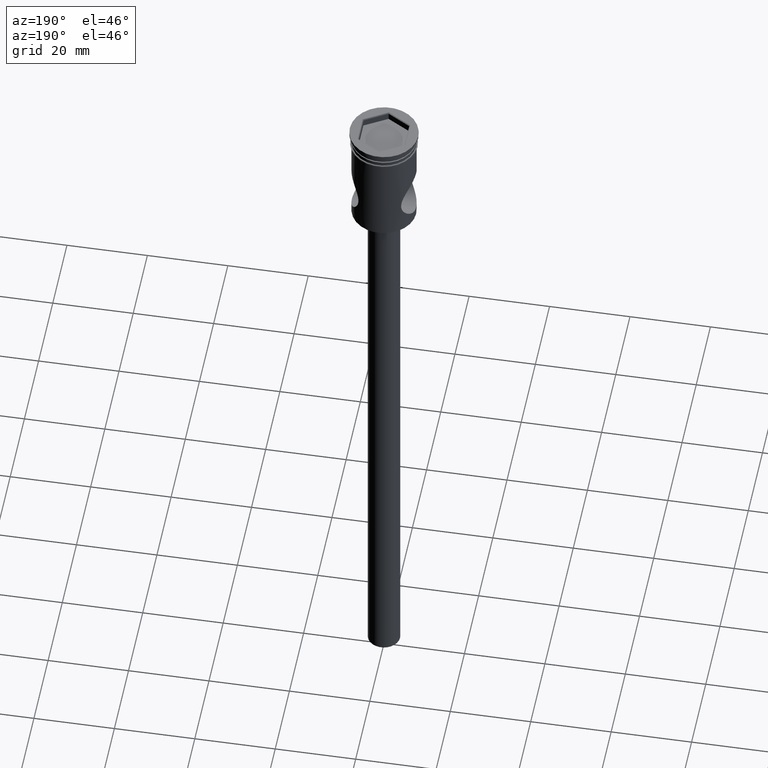
[diagram: clean part render]
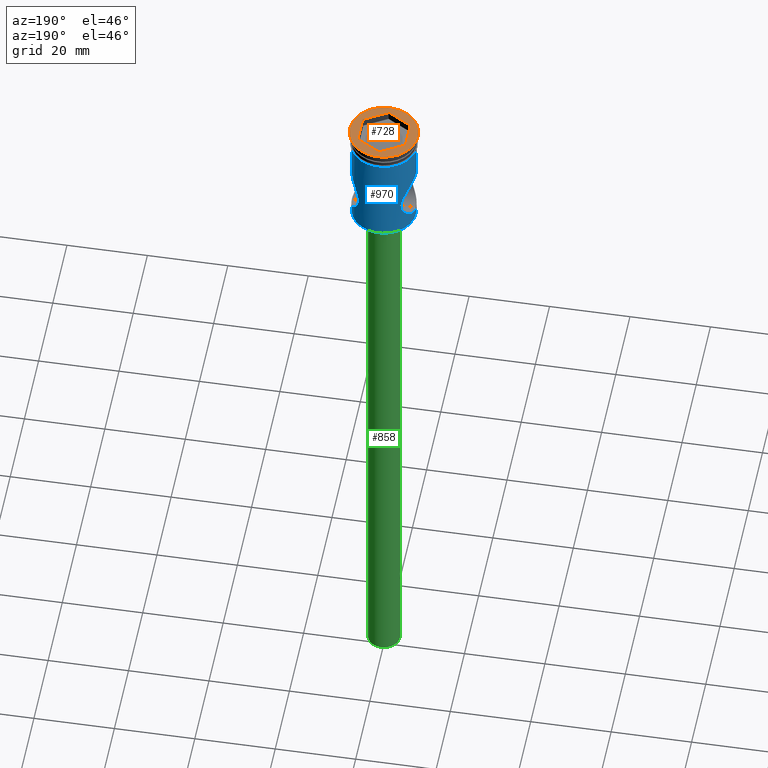
[diagram: same view with three faces highlighted in distinct colors, each labeled with its STEP entity id]
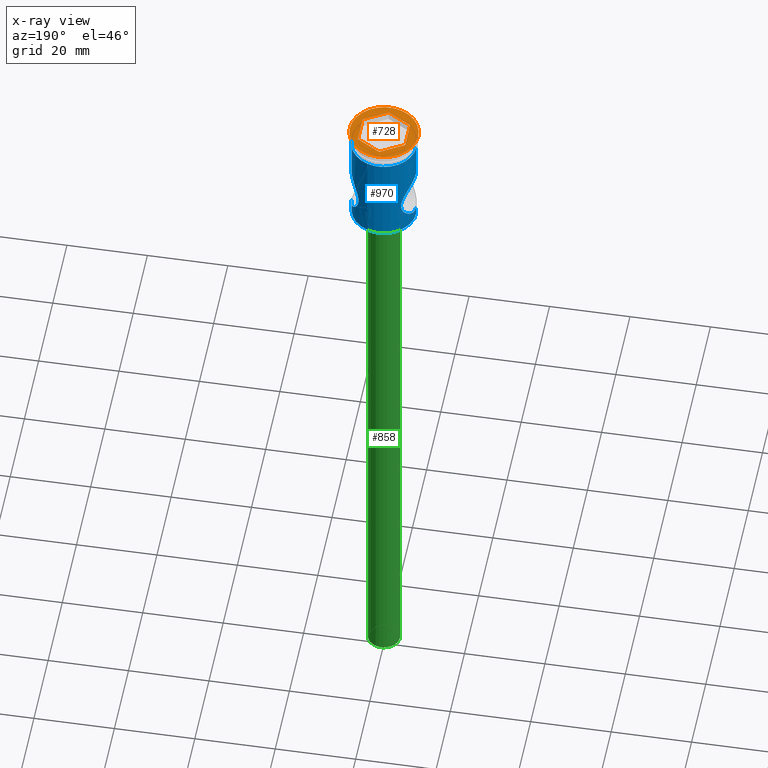
[diagram: x-ray of the same camera — body ghosted, the three highlighted faces saturated]
A machine part, auxiliary view with three faces highlighted in distinct colors.
The next image is the same camera in x-ray (body ghosted, the three faces saturated) — at least one of them is partly hidden behind the body in this view.
Their STEP definitions:

[orange] entity #728 — the highlighted planar face has unit normal (0, -0, 1).
#55 = EDGE_LOOP ( 'NONE', ( #536, #999 ) ) ;
#64 = CARTESIAN_POINT ( 'NONE',  ( 0.000000000000000000, 0.000000000000000000, 0.000000000000000000 ) ) ;
#91 = VERTEX_POINT ( 'NONE', #247 ) ;
#98 = CARTESIAN_POINT ( 'NONE',  ( -5.899999999999997691, -3.406366588218790348, 0.000000000000000000 ) ) ;
#133 = ORIENTED_EDGE ( 'NONE', *, *, #961, .T. ) ;
#170 = AXIS2_PLACEMENT_3D ( 'NONE', #1034, #299, #1253 ) ;
#183 = ORIENTED_EDGE ( 'NONE', *, *, #886, .T. ) ;
#195 = CARTESIAN_POINT ( 'NONE',  ( -0.09999999999999933942, 6.754998149518617545, 0.000000000000000000 ) ) ;
#202 = EDGE_LOOP ( 'NONE', ( #1301, #778, #183, #133, #280, #1160 ) ) ;
#208 = LINE ( 'NONE', #815, #1213 ) ;
#225 = CARTESIAN_POINT ( 'NONE',  ( -5.799999999999998934, -3.464101615137751722, 0.000000000000000000 ) ) ;
#247 = CARTESIAN_POINT ( 'NONE',  ( 5.899999999999996803, -3.406366588218789460, 0.000000000000000000 ) ) ;
#248 = DIRECTION ( 'NONE',  ( 0.8660254037844388186, -0.4999999999999997780, 0.000000000000000000 ) ) ;
#278 = CARTESIAN_POINT ( 'NONE',  ( -8.500000000000000000, 1.040949779275250140E-15, 0.000000000000000000 ) ) ;
#280 = ORIENTED_EDGE ( 'NONE', *, *, #907, .T. ) ;
#299 = DIRECTION ( 'NONE',  ( -0.000000000000000000, -0.000000000000000000, 1.000000000000000000 ) ) ;
#308 = EDGE_CURVE ( 'NONE', #1008, #1503, #1075, .T. ) ;
#314 = VERTEX_POINT ( 'NONE', #781 ) ;
#328 = DIRECTION ( 'NONE',  ( 0.8660254037844385966, 0.4999999999999999445, 0.000000000000000000 ) ) ;
#372 = CARTESIAN_POINT ( 'NONE',  ( 5.799999999999998934, 3.464101615137752610, 0.000000000000000000 ) ) ;
#490 = LINE ( 'NONE', #372, #1343 ) ;
#527 = DIRECTION ( 'NONE',  ( 0.000000000000000000, -0.000000000000000000, 1.000000000000000000 ) ) ;
#529 = VECTOR ( 'NONE', #930, 1000.000000000000000 ) ;
#536 = ORIENTED_EDGE ( 'NONE', *, *, #755, .T. ) ;
#559 = CARTESIAN_POINT ( 'NONE',  ( 0.000000000000000000, 0.000000000000000000, 0.000000000000000000 ) ) ;
#583 = VERTEX_POINT ( 'NONE', #935 ) ;
#607 = VECTOR ( 'NONE', #1373, 1000.000000000000000 ) ;
#627 = AXIS2_PLACEMENT_3D ( 'NONE', #64, #527, #796 ) ;
#657 = DIRECTION ( 'NONE',  ( -0.000000000000000000, -0.000000000000000000, 1.000000000000000000 ) ) ;
#705 = DIRECTION ( 'NONE',  ( -0.8660254037844385966, 0.5000000000000001110, 0.000000000000000000 ) ) ;
#728 = ADVANCED_FACE ( 'NONE', ( #1236, #1352 ), #1447, .T. ) ;
#755 = EDGE_CURVE ( 'NONE', #1503, #1008, #1047, .T. ) ;
#778 = ORIENTED_EDGE ( 'NONE', *, *, #1376, .T. ) ;
#781 = CARTESIAN_POINT ( 'NONE',  ( 5.899999999999998579, 3.406366588218789904, 0.000000000000000000 ) ) ;
#796 = DIRECTION ( 'NONE',  ( 1.000000000000000000, 0.000000000000000000, 0.000000000000000000 ) ) ;
#815 = CARTESIAN_POINT ( 'NONE',  ( -5.899999999999996803, 3.290896534380865823, 0.000000000000000000 ) ) ;
#822 = LINE ( 'NONE', #1272, #529 ) ;
#851 = CARTESIAN_POINT ( 'NONE',  ( -5.899999999999996803, 3.406366588218790348, 0.000000000000000000 ) ) ;
#874 = AXIS2_PLACEMENT_3D ( 'NONE', #559, #657, #1032 ) ;
#886 = EDGE_CURVE ( 'NONE', #990, #583, #1256, .T. ) ;
#907 = EDGE_CURVE ( 'NONE', #314, #91, #822, .T. ) ;
#930 = DIRECTION ( 'NONE',  ( -3.953459470360945130E-16, -1.000000000000000000, 0.000000000000000000 ) ) ;
#935 = CARTESIAN_POINT ( 'NONE',  ( -5.954239560892097332E-16, 6.812733176437579807, 0.000000000000000000 ) ) ;
#961 = EDGE_CURVE ( 'NONE', #583, #314, #490, .T. ) ;
#990 = VERTEX_POINT ( 'NONE', #851 ) ;
#999 = ORIENTED_EDGE ( 'NONE', *, *, #308, .T. ) ;
#1008 = VERTEX_POINT ( 'NONE', #278 ) ;
#1032 = DIRECTION ( 'NONE',  ( 1.000000000000000000, 0.000000000000000000, 0.000000000000000000 ) ) ;
#1034 = CARTESIAN_POINT ( 'NONE',  ( 0.000000000000000000, 0.000000000000000000, 0.000000000000000000 ) ) ;
#1047 = CIRCLE ( 'NONE', #874, 8.500000000000000000 ) ;
#1050 = VECTOR ( 'NONE', #705, 1000.000000000000114 ) ;
#1057 = LINE ( 'NONE', #1167, #607 ) ;
#1075 = CIRCLE ( 'NONE', #170, 8.500000000000000000 ) ;
#1145 = VECTOR ( 'NONE', #328, 1000.000000000000114 ) ;
#1160 = ORIENTED_EDGE ( 'NONE', *, *, #1238, .T. ) ;
#1167 = CARTESIAN_POINT ( 'NONE',  ( 0.09999999999999691080, -6.754998149518617545, 0.000000000000000000 ) ) ;
#1212 = DIRECTION ( 'NONE',  ( 1.317819823453649034E-16, 1.000000000000000000, 0.000000000000000000 ) ) ;
#1213 = VECTOR ( 'NONE', #1212, 1000.000000000000000 ) ;
#1215 = VERTEX_POINT ( 'NONE', #98 ) ;
#1236 = FACE_BOUND ( 'NONE', #202, .T. ) ;
#1238 = EDGE_CURVE ( 'NONE', #91, #1399, #1057, .T. ) ;
#1242 = CARTESIAN_POINT ( 'NONE',  ( -2.007024465603783099E-15, -6.812733176437579807, 0.000000000000000000 ) ) ;
#1253 = DIRECTION ( 'NONE',  ( 1.000000000000000000, 0.000000000000000000, 0.000000000000000000 ) ) ;
#1256 = LINE ( 'NONE', #195, #1145 ) ;
#1272 = CARTESIAN_POINT ( 'NONE',  ( 5.899999999999996803, -3.290896534380868488, 0.000000000000000000 ) ) ;
#1301 = ORIENTED_EDGE ( 'NONE', *, *, #1365, .T. ) ;
#1343 = VECTOR ( 'NONE', #248, 1000.000000000000114 ) ;
#1352 = FACE_OUTER_BOUND ( 'NONE', #55, .T. ) ;
#1365 = EDGE_CURVE ( 'NONE', #1399, #1215, #1493, .T. ) ;
#1373 = DIRECTION ( 'NONE',  ( -0.8660254037844387076, -0.4999999999999998890, 0.000000000000000000 ) ) ;
#1376 = EDGE_CURVE ( 'NONE', #1215, #990, #208, .T. ) ;
#1399 = VERTEX_POINT ( 'NONE', #1242 ) ;
#1404 = CARTESIAN_POINT ( 'NONE',  ( 8.500000000000000000, 0.000000000000000000, 0.000000000000000000 ) ) ;
#1447 = PLANE ( 'NONE',  #627 ) ;
#1493 = LINE ( 'NONE', #225, #1050 ) ;
#1503 = VERTEX_POINT ( 'NONE', #1404 ) ;

[blue] entity #970 — the highlighted cylindrical surface (edge-blend (fillet) strip) has radius 8 mm, axis along (-0, -0, 1).
#6 = CYLINDRICAL_SURFACE ( 'NONE', #998, 7.999999999999996447 ) ;
#10 = CARTESIAN_POINT ( 'NONE',  ( 0.000000000000000000, 0.000000000000000000, -27.30000000000000426 ) ) ;
#18 = DIRECTION ( 'NONE',  ( -0.000000000000000000, -0.000000000000000000, 1.000000000000000000 ) ) ;
#42 = B_SPLINE_CURVE_WITH_KNOTS ( 'NONE', 3,
 ( #57, #992, #883, #1137, #653, #1028, #1010, #908, #168, #1353, #1453, #643, #1334, #289, #1228, #1122, #50, #538, #417, #774, #85, #340, #475, #585, #1384, #825, #201, #1044, #1285, #946, #258, #694, #568, #1054, #1476, #560, #1482, #1502, #1162, #1033, #920, #458, #1275, #333 ),
 .UNSPECIFIED., .F., .F.,
 ( 4, 2, 2, 2, 2, 2, 2, 2, 2, 2, 2, 2, 2, 2, 2, 2, 2, 2, 2, 2, 2, 4 ),
 ( 0.000000000000000000, 0.001228223836357238098, 0.002456447672714476196, 0.003070559590893096654, 0.003684671509071716679, 0.004912895345428957596, 0.006141119181786197645, 0.007369343018143437694, 0.007983454936322062490, 0.008597566854500688152, 0.009825790690857941212, 0.01043990260903657034, 0.01105401452721520121, 0.01166812644539383034, 0.01228223836357246121, 0.01351046219992971080, 0.01473868603628695692, 0.01596690987264420825, 0.01719513370900145610, 0.01780924562718008350, 0.01842335754535870743, 0.01965158138171595528 ),
 .UNSPECIFIED. ) ;
#50 = CARTESIAN_POINT ( 'NONE',  ( 5.648998666191807239, 5.665331633315698667, -20.98569890523691583 ) ) ;
#57 = CARTESIAN_POINT ( 'NONE',  ( 7.999999999999996447, 0.000000000000000000, -25.00000000000000000 ) ) ;
#59 = CARTESIAN_POINT ( 'NONE',  ( -6.599412474671010109, 4.532668071879429661, -15.05083651367930742 ) ) ;
#69 = CARTESIAN_POINT ( 'NONE',  ( -5.937193840094636244, 5.363245192895813140, -21.69666719771004892 ) ) ;
#74 = EDGE_CURVE ( 'NONE', #502, #1332, #1169, .T. ) ;
#85 = CARTESIAN_POINT ( 'NONE',  ( 5.291508588819593406, 5.999994737873667106, -19.40979141361455262 ) ) ;
#87 = CARTESIAN_POINT ( 'NONE',  ( 7.999999999999996447, 0.000000000000000000, -27.30000000000000426 ) ) ;
#108 = CARTESIAN_POINT ( 'NONE',  ( -7.999999999999996447, 9.797174393178821713E-16, 0.000000000000000000 ) ) ;
#113 = CARTESIAN_POINT ( 'NONE',  ( -7.999999999999996447, 9.797174356432676922E-16, -13.00000000000000533 ) ) ;
#135 = CARTESIAN_POINT ( 'NONE',  ( 7.999999999999996447, 3.674711311745778243E-24, -13.00000000000000533 ) ) ;
#162 = CARTESIAN_POINT ( 'NONE',  ( -7.392840448243055640, 3.077268624920922235, -13.83477139314359405 ) ) ;
#168 = CARTESIAN_POINT ( 'NONE',  ( 7.318622431870950074, 3.235523761949524069, -24.05653912422262408 ) ) ;
#171 = CARTESIAN_POINT ( 'NONE',  ( -5.474655730134190712, 5.833676180865436933, -17.58271699258815346 ) ) ;
#176 = ORIENTED_EDGE ( 'NONE', *, *, #466, .F. ) ;
#181 = ORIENTED_EDGE ( 'NONE', *, *, #1229, .F. ) ;
#187 = CARTESIAN_POINT ( 'NONE',  ( -5.340955530264040796, 5.957261304845339112, -19.82204812401646876 ) ) ;
#193 = CARTESIAN_POINT ( 'NONE',  ( -6.426120009460147386, 4.772495035090829951, -15.34422494722665498 ) ) ;
#201 = CARTESIAN_POINT ( 'NONE',  ( 5.527877811876816594, 5.783575200193208588, -17.39087967744914920 ) ) ;
#212 = CARTESIAN_POINT ( 'NONE',  ( -7.999999999999996447, 0.000000000000000000, -25.00000000000000000 ) ) ;
#244 = VERTEX_POINT ( 'NONE', #135 ) ;
#258 = CARTESIAN_POINT ( 'NONE',  ( 6.095265202635740565, 5.188384097884398471, -15.96330462474424650 ) ) ;
#289 = CARTESIAN_POINT ( 'NONE',  ( 6.094205644570493519, 5.189600670481776312, -22.03454661334871290 ) ) ;
#291 = CARTESIAN_POINT ( 'NONE',  ( -6.932348065000020654, 4.004981294134720926, -14.51657531287133551 ) ) ;
#301 = CARTESIAN_POINT ( 'NONE',  ( -5.717670742267800144, 5.596336919971244939, -16.82796284348983917 ) ) ;
#325 = LINE ( 'NONE', #800, #775 ) ;
#326 = DIRECTION ( 'NONE',  ( -0.000000000000000000, -0.000000000000000000, 1.000000000000000000 ) ) ;
#333 = CARTESIAN_POINT ( 'NONE',  ( 7.999999999999996447, 3.674711311745778243E-24, -13.00000000000000533 ) ) ;
#337 = CARTESIAN_POINT ( 'NONE',  ( 7.999999999999996447, 0.000000000000000000, 0.000000000000000000 ) ) ;
#340 = CARTESIAN_POINT ( 'NONE',  ( 5.291499639625487639, 6.000002630321015218, -18.79521987294451435 ) ) ;
#341 = VERTEX_POINT ( 'NONE', #87 ) ;
#382 = CIRCLE ( 'NONE', #1233, 7.999999999999996447 ) ;
#392 = ORIENTED_EDGE ( 'NONE', *, *, #74, .T. ) ;
#409 = ORIENTED_EDGE ( 'NONE', *, *, #1356, .F. ) ;
#411 = CARTESIAN_POINT ( 'NONE',  ( -7.696444758544893183, 2.191140728972409857, -13.41088448561661650 ) ) ;
#417 = CARTESIAN_POINT ( 'NONE',  ( 5.474514516413027998, 5.833807645266261943, -20.41669993575522923 ) ) ;
#419 = CARTESIAN_POINT ( 'NONE',  ( -7.875112291323477898, 1.422312626392037371, -13.16749109191733957 ) ) ;
#438 = CARTESIAN_POINT ( 'NONE',  ( -5.291471813663452650, 6.000027170513403618, -18.79430872448704548 ) ) ;
#443 = CARTESIAN_POINT ( 'NONE',  ( -7.748015674478848425, 2.001785621332211385, -13.34018995724741607 ) ) ;
#458 = CARTESIAN_POINT ( 'NONE',  ( 7.968510204580123713, 0.8173127755210328749, -13.04179007278580293 ) ) ;
#466 = EDGE_CURVE ( 'NONE', #341, #921, #468, .T. ) ;
#468 = LINE ( 'NONE', #1287, #1191 ) ;
#475 = CARTESIAN_POINT ( 'NONE',  ( 5.303431297491207452, 5.989541423528398134, -18.59082079987659952 ) ) ;
#502 = VERTEX_POINT ( 'NONE', #113 ) ;
#538 = CARTESIAN_POINT ( 'NONE',  ( 5.527830583457348013, 5.783619756404971390, -20.60895157510370268 ) ) ;
#555 = CARTESIAN_POINT ( 'NONE',  ( -6.096832542624039064, 5.181052271612227145, -22.03201423696314265 ) ) ;
#560 = CARTESIAN_POINT ( 'NONE',  ( 7.392183792285975663, 3.078563709593460818, -13.83574790663121590 ) ) ;
#564 = CARTESIAN_POINT ( 'NONE',  ( -6.598787025335902889, 4.533655066149032464, -22.94815787054485412 ) ) ;
#568 = CARTESIAN_POINT ( 'NONE',  ( 6.602014270987715427, 4.528930003495660550, -15.04648686704185856 ) ) ;
#585 = CARTESIAN_POINT ( 'NONE',  ( 5.350380422783078238, 5.947639811124362907, -18.18292303966837764 ) ) ;
#589 = CARTESIAN_POINT ( 'NONE',  ( -7.746242821178788596, 2.008647717025523693, -24.65738428818450245 ) ) ;
#603 = CARTESIAN_POINT ( 'NONE',  ( -6.932510933914958429, 3.995992554649490547, -23.47975228357175581 ) ) ;
#643 = CARTESIAN_POINT ( 'NONE',  ( 6.600129246405443517, 4.531693863514761667, -22.95038707538193634 ) ) ;
#653 = CARTESIAN_POINT ( 'NONE',  ( 7.753317466694376492, 2.007594612796118838, -24.66794618566808239 ) ) ;
#659 = CARTESIAN_POINT ( 'NONE',  ( -8.000000000000005329, 0.2050786897151790633, -13.00000000000000355 ) ) ;
#666 = CARTESIAN_POINT ( 'NONE',  ( -5.519437917285256567, 5.792285672141820108, -20.61683396324643169 ) ) ;
#674 = CARTESIAN_POINT ( 'NONE',  ( -5.528728542356219577, 5.782767647903219732, -17.38791116192859931 ) ) ;
#691 = CARTESIAN_POINT ( 'NONE',  ( 7.999999999999996447, 0.000000000000000000, -25.00000000000000000 ) ) ;
#694 = CARTESIAN_POINT ( 'NONE',  ( 6.428305707969257377, 4.769535948342530141, -15.34044057477574263 ) ) ;
#716 = CARTESIAN_POINT ( 'NONE',  ( -8.000000000000000000, 0.2076584939606447855, -25.00000000000001066 ) ) ;
#719 = EDGE_LOOP ( 'NONE', ( #1507, #927, #1172, #392, #181, #972, #409, #176 ) ) ;
#744 = DIRECTION ( 'NONE',  ( 1.000000000000000000, 0.000000000000000000, 0.000000000000000000 ) ) ;
#767 = CARTESIAN_POINT ( 'NONE',  ( -7.960178332295269499, 0.8233858112076458680, -13.05318252701360215 ) ) ;
#774 = CARTESIAN_POINT ( 'NONE',  ( 5.341952933818355120, 5.956343020881682548, -19.82666753736794618 ) ) ;
#775 = VECTOR ( 'NONE', #1035, 1000.000000000000000 ) ;
#783 = CARTESIAN_POINT ( 'NONE',  ( -7.094299755750172132, 3.714105956844027556, -14.27193636968089585 ) ) ;
#790 = CARTESIAN_POINT ( 'NONE',  ( -5.859839614964069909, 5.447306643968808260, -21.52271597277527704 ) ) ;
#800 = CARTESIAN_POINT ( 'NONE',  ( -7.999999999999996447, 9.797174393178821713E-16, 0.000000000000000000 ) ) ;
#811 = CARTESIAN_POINT ( 'NONE',  ( -7.694334963991131815, 2.198537974230715175, -24.58621182590502485 ) ) ;
#825 = CARTESIAN_POINT ( 'NONE',  ( 5.474412988877314312, 5.833905236971784980, -17.58356884929881048 ) ) ;
#861 = VERTEX_POINT ( 'NONE', #1364 ) ;
#883 = CARTESIAN_POINT ( 'NONE',  ( 7.967750386662298290, 0.8225813075346128933, -24.95718867133071939 ) ) ;
#903 = CARTESIAN_POINT ( 'NONE',  ( -7.837238599853709964, 1.617585761159322510, -13.21864966473142644 ) ) ;
#908 = CARTESIAN_POINT ( 'NONE',  ( 7.390068150002869096, 3.069273339745732798, -24.15922233971244637 ) ) ;
#911 = CARTESIAN_POINT ( 'NONE',  ( -6.092548161367386861, 5.191587824295140763, -15.96869401757640716 ) ) ;
#920 = CARTESIAN_POINT ( 'NONE',  ( 7.875627092851996913, 1.419784017982118174, -13.16679506876979033 ) ) ;
#921 = VERTEX_POINT ( 'NONE', #691 ) ;
#925 = DIRECTION ( 'NONE',  ( 1.000000000000000000, 0.000000000000000000, 0.000000000000000000 ) ) ;
#926 = VECTOR ( 'NONE', #1486, 1000.000000000000000 ) ;
#927 = ORIENTED_EDGE ( 'NONE', *, *, #1470, .T. ) ;
#937 = CARTESIAN_POINT ( 'NONE',  ( -7.873944427309549354, 1.428810887794780049, -24.83093286763472918 ) ) ;
#942 = CARTESIAN_POINT ( 'NONE',  ( -7.835858405065169840, 1.624274161447295306, -24.77948060674688691 ) ) ;
#946 = CARTESIAN_POINT ( 'NONE',  ( 5.934194063793421847, 5.369288296893337531, -16.29430799600839208 ) ) ;
#952 = CARTESIAN_POINT ( 'NONE',  ( -7.092607887154919410, 3.704399776580871606, -23.72372303530257298 ) ) ;
#968 = FACE_OUTER_BOUND ( 'NONE', #719, .T. ) ;
#970 = ADVANCED_FACE ( 'NONE', ( #968 ), #6, .T. ) ;
#972 = ORIENTED_EDGE ( 'NONE', *, *, #1219, .F. ) ;
#980 = EDGE_CURVE ( 'NONE', #341, #1483, #382, .T. ) ;
#992 = CARTESIAN_POINT ( 'NONE',  ( 7.999999999999998224, 0.4161879994587696641, -25.00000000000000711 ) ) ;
#998 = AXIS2_PLACEMENT_3D ( 'NONE', #1203, #1440, #744 ) ;
#1010 = CARTESIAN_POINT ( 'NONE',  ( 7.522790365168889437, 2.727851025529601348, -24.34760159016909142 ) ) ;
#1020 = CARTESIAN_POINT ( 'NONE',  ( -5.932300773519818549, 5.371293148560216224, -16.29886334358921118 ) ) ;
#1021 = B_SPLINE_CURVE_WITH_KNOTS ( 'NONE', 3,
 ( #1336, #659, #1341, #767, #1224, #419, #903, #443, #411, #1132, #162, #783, #291, #59, #193, #911, #1020, #301, #1349, #674, #171, #1124, #1462, #1243, #438, #1148, #187, #666, #1140, #790, #69, #555, #1473, #1248, #564, #1074, #603, #952, #1270, #1362, #1388, #811, #589, #942, #937, #1397, #1513, #1263, #716, #212 ),
 .UNSPECIFIED., .F., .F.,
 ( 4, 2, 2, 2, 2, 2, 2, 2, 2, 2, 2, 2, 2, 2, 2, 2, 2, 2, 2, 2, 2, 2, 2, 2, 4 ),
 ( 0.01965158138171595875, 0.02026440806685870719, 0.02087723475200145562, 0.02149006143714420405, 0.02210288812228695249, 0.02332854149257245283, 0.02455419486285795316, 0.02577984823314345697, 0.02700550160342895384, 0.02761832828857171268, 0.02823115497371446458, 0.02884398165885721996, 0.02945680834399997533, 0.03068246171428548608, 0.03190811508457099682, 0.03252094176971375566, 0.03313376845485650757, 0.03435942182514201831, 0.03497224851028477716, 0.03558507519542753600, 0.03681072856571306062, 0.03742355525085581947, 0.03803638193599857831, 0.03864920862114134409, 0.03926203530628410293 ),
 .UNSPECIFIED. ) ;
#1028 = CARTESIAN_POINT ( 'NONE',  ( 7.584438918382732986, 2.551936178765121799, -24.43384157505064636 ) ) ;
#1033 = CARTESIAN_POINT ( 'NONE',  ( 7.837185563733797267, 1.617777997116385258, -13.21872241145037563 ) ) ;
#1035 = DIRECTION ( 'NONE',  ( -0.000000000000000000, -0.000000000000000000, 1.000000000000000000 ) ) ;
#1044 = CARTESIAN_POINT ( 'NONE',  ( 5.649101405964834122, 5.665229783906036154, -17.01400357395085550 ) ) ;
#1048 = CARTESIAN_POINT ( 'NONE',  ( -7.999999999999996447, 0.000000000000000000, -25.00000000000000000 ) ) ;
#1054 = CARTESIAN_POINT ( 'NONE',  ( 6.935409427810199645, 3.999736926290286210, -14.51184028921589508 ) ) ;
#1074 = CARTESIAN_POINT ( 'NONE',  ( -6.849379830468325991, 4.136484081211206920, -23.35028667483849318 ) ) ;
#1095 = VECTOR ( 'NONE', #1192, 1000.000000000000000 ) ;
#1122 = CARTESIAN_POINT ( 'NONE',  ( 5.717181671610946481, 5.596851870810901630, -21.17084374095739463 ) ) ;
#1124 = CARTESIAN_POINT ( 'NONE',  ( -5.386132118162890059, 5.915506229595402843, -17.97664524532638453 ) ) ;
#1132 = CARTESIAN_POINT ( 'NONE',  ( -7.526744538711455768, 2.737435864263675800, -13.64615235571891283 ) ) ;
#1137 = CARTESIAN_POINT ( 'NONE',  ( 7.845111153738295151, 1.617379738080571894, -24.79213429196722984 ) ) ;
#1140 = CARTESIAN_POINT ( 'NONE',  ( -5.643916026891298898, 5.673596022587067189, -20.98979656833889251 ) ) ;
#1144 = EDGE_CURVE ( 'NONE', #502, #1428, #1021, .T. ) ;
#1148 = CARTESIAN_POINT ( 'NONE',  ( -5.291564416442851915, 5.999945502536777830, -19.41375567364516641 ) ) ;
#1159 = CARTESIAN_POINT ( 'NONE',  ( 0.000000000000000000, 0.000000000000000000, -3.999999999999997335 ) ) ;
#1162 = CARTESIAN_POINT ( 'NONE',  ( 7.748219018226238042, 2.000946089715710308, -13.33991246093565231 ) ) ;
#1169 = LINE ( 'NONE', #108, #1095 ) ;
#1172 = ORIENTED_EDGE ( 'NONE', *, *, #1144, .F. ) ;
#1174 = LINE ( 'NONE', #337, #926 ) ;
#1191 = VECTOR ( 'NONE', #1511, 1000.000000000000000 ) ;
#1192 = DIRECTION ( 'NONE',  ( -0.000000000000000000, -0.000000000000000000, 1.000000000000000000 ) ) ;
#1203 = CARTESIAN_POINT ( 'NONE',  ( 0.000000000000000000, 0.000000000000000000, 0.000000000000000000 ) ) ;
#1219 = EDGE_CURVE ( 'NONE', #244, #861, #1174, .T. ) ;
#1224 = CARTESIAN_POINT ( 'NONE',  ( -7.936580320267932365, 1.025211991777383647, -13.08475919831038858 ) ) ;
#1228 = CARTESIAN_POINT ( 'NONE',  ( 5.933514355146050967, 5.370016379611009860, -21.70410386792428170 ) ) ;
#1229 = EDGE_CURVE ( 'NONE', #861, #1332, #1252, .T. ) ;
#1233 = AXIS2_PLACEMENT_3D ( 'NONE', #10, #18, #1305 ) ;
#1243 = CARTESIAN_POINT ( 'NONE',  ( -5.303887827319022641, 5.989138807782576457, -18.58493257538529875 ) ) ;
#1248 = CARTESIAN_POINT ( 'NONE',  ( -6.428408221799558397, 4.769379950103072474, -22.65971221525529344 ) ) ;
#1252 = CIRCLE ( 'NONE', #1282, 8.000000000000000000 ) ;
#1263 = CARTESIAN_POINT ( 'NONE',  ( -7.991786201921672550, 0.4171226887462312072, -24.98906086098487123 ) ) ;
#1270 = CARTESIAN_POINT ( 'NONE',  ( -7.169789722930493880, 3.553058473854127985, -23.83860449815402305 ) ) ;
#1275 = CARTESIAN_POINT ( 'NONE',  ( 8.000000000000005329, 0.4110175701281992278, -13.00000000000000000 ) ) ;
#1282 = AXIS2_PLACEMENT_3D ( 'NONE', #1159, #326, #925 ) ;
#1285 = CARTESIAN_POINT ( 'NONE',  ( 5.717260744181801968, 5.596776624407745260, -16.82891779856496584 ) ) ;
#1287 = CARTESIAN_POINT ( 'NONE',  ( 7.999999999999996447, 0.000000000000000000, 0.000000000000000000 ) ) ;
#1305 = DIRECTION ( 'NONE',  ( -1.000000000000000000, 0.000000000000000000, 0.000000000000000000 ) ) ;
#1326 = CARTESIAN_POINT ( 'NONE',  ( -8.000000000000000000, 9.797174393178825657E-16, -3.999999999999997335 ) ) ;
#1332 = VERTEX_POINT ( 'NONE', #1326 ) ;
#1334 = CARTESIAN_POINT ( 'NONE',  ( 6.426683704192725166, 4.771690908225659555, -22.65669169386860204 ) ) ;
#1336 = CARTESIAN_POINT ( 'NONE',  ( -7.999999999999996447, 9.797174356432676922E-16, -13.00000000000000533 ) ) ;
#1341 = CARTESIAN_POINT ( 'NONE',  ( -7.991997215772791208, 0.4127757007396791189, -13.01065792661720621 ) ) ;
#1349 = CARTESIAN_POINT ( 'NONE',  ( -5.650483228049789197, 5.663857365279294953, -17.01003722717182498 ) ) ;
#1353 = CARTESIAN_POINT ( 'NONE',  ( 7.095043372362062506, 3.712647680833710329, -23.72917063698660911 ) ) ;
#1356 = EDGE_CURVE ( 'NONE', #921, #244, #42, .T. ) ;
#1362 = CARTESIAN_POINT ( 'NONE',  ( -7.390764062597866335, 3.081727328898060225, -24.16219223809560290 ) ) ;
#1364 = CARTESIAN_POINT ( 'NONE',  ( 8.000000000000000000, 0.000000000000000000, -3.999999999999997335 ) ) ;
#1378 = CARTESIAN_POINT ( 'NONE',  ( -7.999999999999996447, 9.797174393178821713E-16, -27.30000000000000426 ) ) ;
#1384 = CARTESIAN_POINT ( 'NONE',  ( 5.385705311345802215, 5.915896059439944565, -17.97877459268462985 ) ) ;
#1388 = CARTESIAN_POINT ( 'NONE',  ( -7.524109323248031167, 2.744670825570129757, -24.35015039146814786 ) ) ;
#1397 = CARTESIAN_POINT ( 'NONE',  ( -7.935826362832939296, 1.031097151778473719, -24.91423007022369518 ) ) ;
#1428 = VERTEX_POINT ( 'NONE', #1048 ) ;
#1440 = DIRECTION ( 'NONE',  ( -0.000000000000000000, -0.000000000000000000, 1.000000000000000000 ) ) ;
#1453 = CARTESIAN_POINT ( 'NONE',  ( 6.933994888437764459, 4.002208169122734027, -23.48599343389724581 ) ) ;
#1462 = CARTESIAN_POINT ( 'NONE',  ( -5.351298131410346492, 5.946815791029208320, -18.17692857331259404 ) ) ;
#1470 = EDGE_CURVE ( 'NONE', #1483, #1428, #325, .T. ) ;
#1473 = CARTESIAN_POINT ( 'NONE',  ( -6.178944471944528338, 5.083158423289838801, -22.19321469611284314 ) ) ;
#1476 = CARTESIAN_POINT ( 'NONE',  ( 7.095827365271405895, 3.710952672189014923, -14.26968452820924682 ) ) ;
#1482 = CARTESIAN_POINT ( 'NONE',  ( 7.528683465599922187, 2.731923562265712313, -13.64343887222187135 ) ) ;
#1483 = VERTEX_POINT ( 'NONE', #1378 ) ;
#1486 = DIRECTION ( 'NONE',  ( -0.000000000000000000, -0.000000000000000000, 1.000000000000000000 ) ) ;
#1502 = CARTESIAN_POINT ( 'NONE',  ( 7.697512327894634687, 2.187332674909133967, -13.40941737064048489 ) ) ;
#1507 = ORIENTED_EDGE ( 'NONE', *, *, #980, .T. ) ;
#1511 = DIRECTION ( 'NONE',  ( -0.000000000000000000, -0.000000000000000000, 1.000000000000000000 ) ) ;
#1513 = CARTESIAN_POINT ( 'NONE',  ( -7.959626168830804538, 0.8288481689406965724, -24.94607871179749026 ) ) ;

[green] entity #858 — the highlighted cylindrical surface (edge-blend (fillet) strip) has radius 4 mm, axis along (-0, -0, 1).
#17 = AXIS2_PLACEMENT_3D ( 'NONE', #352, #1379, #837 ) ;
#20 = EDGE_CURVE ( 'NONE', #1153, #753, #220, .T. ) ;
#21 = ORIENTED_EDGE ( 'NONE', *, *, #20, .T. ) ;
#126 = EDGE_CURVE ( 'NONE', #650, #753, #1514, .T. ) ;
#165 = EDGE_CURVE ( 'NONE', #305, #1153, #1309, .T. ) ;
#215 = CARTESIAN_POINT ( 'NONE',  ( 0.000000000000000000, 0.000000000000000000, -177.5000000000000000 ) ) ;
#220 = CIRCLE ( 'NONE', #324, 4.000000000000000000 ) ;
#284 = CARTESIAN_POINT ( 'NONE',  ( -4.000000000000000000, 4.898587196589412829E-16, -177.5000000000000000 ) ) ;
#305 = VERTEX_POINT ( 'NONE', #310 ) ;
#310 = CARTESIAN_POINT ( 'NONE',  ( -4.000000000000000000, 4.898587196589412829E-16, -177.5000000000000000 ) ) ;
#324 = AXIS2_PLACEMENT_3D ( 'NONE', #345, #1522, #1498 ) ;
#329 = AXIS2_PLACEMENT_3D ( 'NONE', #215, #824, #693 ) ;
#345 = CARTESIAN_POINT ( 'NONE',  ( 0.000000000000000000, 0.000000000000000000, -30.50000000000000000 ) ) ;
#352 = CARTESIAN_POINT ( 'NONE',  ( 0.000000000000000000, 0.000000000000000000, -177.5000000000000000 ) ) ;
#357 = CIRCLE ( 'NONE', #17, 4.000000000000000000 ) ;
#584 = FACE_OUTER_BOUND ( 'NONE', #1351, .T. ) ;
#621 = DIRECTION ( 'NONE',  ( -0.000000000000000000, -0.000000000000000000, 1.000000000000000000 ) ) ;
#637 = CARTESIAN_POINT ( 'NONE',  ( 4.000000000000000000, 0.000000000000000000, -177.5000000000000000 ) ) ;
#650 = VERTEX_POINT ( 'NONE', #757 ) ;
#693 = DIRECTION ( 'NONE',  ( 1.000000000000000000, 0.000000000000000000, 0.000000000000000000 ) ) ;
#753 = VERTEX_POINT ( 'NONE', #1245 ) ;
#757 = CARTESIAN_POINT ( 'NONE',  ( 4.000000000000000000, 0.000000000000000000, -177.5000000000000000 ) ) ;
#820 = CARTESIAN_POINT ( 'NONE',  ( -4.000000000000000000, 4.898587196589412829E-16, -30.50000000000000000 ) ) ;
#824 = DIRECTION ( 'NONE',  ( -0.000000000000000000, -0.000000000000000000, 1.000000000000000000 ) ) ;
#837 = DIRECTION ( 'NONE',  ( -1.000000000000000000, 0.000000000000000000, 0.000000000000000000 ) ) ;
#858 = ADVANCED_FACE ( 'NONE', ( #584 ), #1266, .T. ) ;
#1052 = ORIENTED_EDGE ( 'NONE', *, *, #126, .F. ) ;
#1112 = ORIENTED_EDGE ( 'NONE', *, *, #165, .T. ) ;
#1153 = VERTEX_POINT ( 'NONE', #820 ) ;
#1176 = EDGE_CURVE ( 'NONE', #305, #650, #357, .T. ) ;
#1245 = CARTESIAN_POINT ( 'NONE',  ( 4.000000000000000000, 0.000000000000000000, -30.50000000000000000 ) ) ;
#1266 = CYLINDRICAL_SURFACE ( 'NONE', #329, 4.000000000000000000 ) ;
#1309 = LINE ( 'NONE', #284, #1414 ) ;
#1317 = DIRECTION ( 'NONE',  ( -0.000000000000000000, -0.000000000000000000, 1.000000000000000000 ) ) ;
#1351 = EDGE_LOOP ( 'NONE', ( #1515, #1112, #21, #1052 ) ) ;
#1379 = DIRECTION ( 'NONE',  ( 0.000000000000000000, 0.000000000000000000, -1.000000000000000000 ) ) ;
#1414 = VECTOR ( 'NONE', #621, 1000.000000000000000 ) ;
#1463 = VECTOR ( 'NONE', #1317, 1000.000000000000000 ) ;
#1498 = DIRECTION ( 'NONE',  ( -1.000000000000000000, 0.000000000000000000, 0.000000000000000000 ) ) ;
#1514 = LINE ( 'NONE', #637, #1463 ) ;
#1515 = ORIENTED_EDGE ( 'NONE', *, *, #1176, .F. ) ;
#1522 = DIRECTION ( 'NONE',  ( 0.000000000000000000, 0.000000000000000000, -1.000000000000000000 ) ) ;